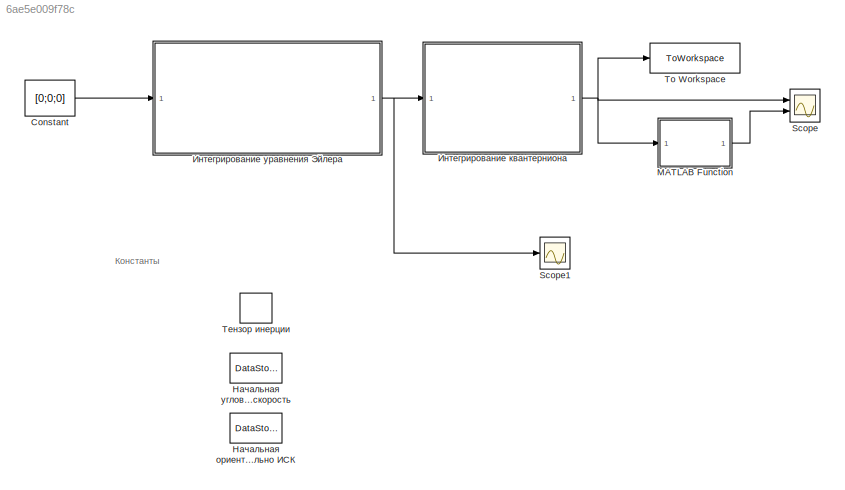
MODEL slx_6ae5e009f78c
KIND model
CONFIG AbsTol = auto
CONFIG EnableMultiTasking = off
CONFIG FixedStep = 1e-3
CONFIG MaxStep = 0.1
CONFIG MinStep = auto
CONFIG RelTol = 1e-3
CONFIG SampleTimeConstraint = Unconstrained
CONFIG SolverName = VariableStepAuto
CONFIG StartTime = 0.0
CONFIG StopTime = 1000.0
BLOCK [Constant] Constant
  Value = [0;0;0]
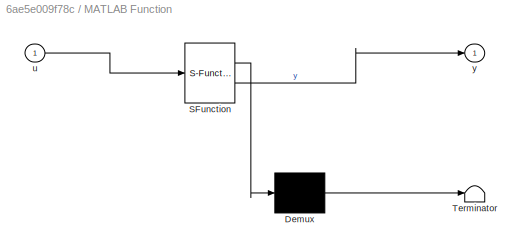
BLOCK [SubSystem] MATLAB Function
  ErrorFcn = Stateflow.Translate.translate
  PermitHierarchicalResolution = ExplicitOnly
  Ports = [1, 1]
  RequestExecContextInheritance = off
  SFBlockType = MATLAB Function
  TreatAsAtomicUnit = on
BLOCK [Demux] MATLAB Function/ Demux 
  Outputs = 1
  Ports = [1, 1]
BLOCK [S-Function] MATLAB Function/ SFunction 
  EnableBusSupport = on
  FunctionName = sf_sfun
  PortCounts = [1 2]
  Ports = [1, 2]
  SFcnIsStateOwnerBlock = off
  SFunctionDeploymentMode = off
  Tag = Stateflow S-Function 3
BLOCK [Terminator] MATLAB Function/ Terminator 
BLOCK [Inport] MATLAB Function/u
BLOCK [Outport] MATLAB Function/y
BLOCK [Scope] Scope
  Floating = off
  NumInputPorts = 2
  Ports = [2]
  ScopeSpecificationString = Simulink.scopes.TimeScopeBlockCfg('CurrentConfiguration', extmgr.ConfigurationSet(extmgr.Configuration('Core','General UI',true),extmgr.Configuration('Core','Source UI',true),extmgr.Configuration('Sources','WiredSimulink',true),extmgr.Configuration('Visuals','Time Domain',true,'SerializedDisplays',{struct('MinYLimReal','-1.13996','MaxYLimReal','1.23777','YLabelReal','','MinYLimMag','0.00000','MaxY...<+2180ch>
BLOCK [Scope] Scope1
  Floating = off
  NumInputPorts = 1
  Ports = [1]
  ScopeSpecificationString = Simulink.scopes.TimeScopeBlockCfg('CurrentConfiguration', extmgr.ConfigurationSet(extmgr.Configuration('Core','General UI',true),extmgr.Configuration('Core','Source UI',true),extmgr.Configuration('Sources','WiredSimulink',true,'DataLoggingVariableName','ScopeData1'),extmgr.Configuration('Visuals','Time Domain',true,'SerializedDisplays',{struct('MinYLimReal','-0.00037','MaxYLimReal','0.00337','YLab...<+1464ch>
BLOCK [ToWorkspace] To Workspace
  FixptAsFi = on
  MaxDataPoints = inf
  Ports = [1]
  SampleTime = -1
  VariableName = quat
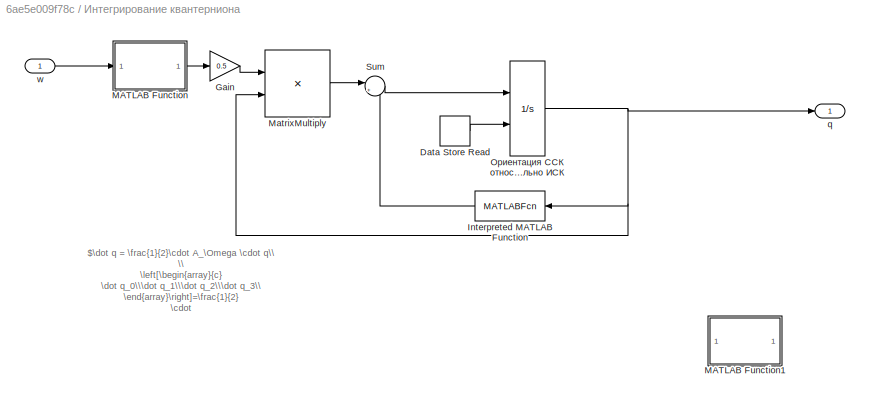
BLOCK [SubSystem] Интегрирование квантерниона
  Ports = [1, 1]
  RequestExecContextInheritance = off
BLOCK [DataStoreRead] Интегрирование квантерниона/Data Store Read
  DataStoreName = SN0
  IndexOptions = Index vector (dialog)
  Indices = 1
  OutputSizes = 1
  Ports = [0, 1]
BLOCK [Gain] Интегрирование квантерниона/Gain
  Gain = 0.5
BLOCK [MATLABFcn] Интегрирование квантерниона/Interpreted MATLAB Function
  MATLABFcn = u.* (sum(u.^2)-1 )
  NameLocation = top
  Output1D = off
  OutputDimensions = [4,1]
  Ports = [1, 1]
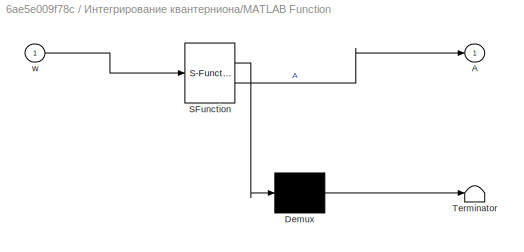
BLOCK [SubSystem] Интегрирование квантерниона/MATLAB Function
  ErrorFcn = Stateflow.Translate.translate
  PermitHierarchicalResolution = ExplicitOnly
  Ports = [1, 1]
  RequestExecContextInheritance = off
  SFBlockType = MATLAB Function
  TreatAsAtomicUnit = on
BLOCK [Demux] Интегрирование квантерниона/MATLAB Function/ Demux 
  Outputs = 1
  Ports = [1, 1]
BLOCK [S-Function] Интегрирование квантерниона/MATLAB Function/ SFunction 
  EnableBusSupport = on
  FunctionName = sf_sfun
  PortCounts = [1 2]
  Ports = [1, 2]
  SFcnIsStateOwnerBlock = off
  SFunctionDeploymentMode = off
  Tag = Stateflow S-Function 2
BLOCK [Terminator] Интегрирование квантерниона/MATLAB Function/ Terminator 
BLOCK [Outport] Интегрирование квантерниона/MATLAB Function/A
BLOCK [Inport] Интегрирование квантерниона/MATLAB Function/w
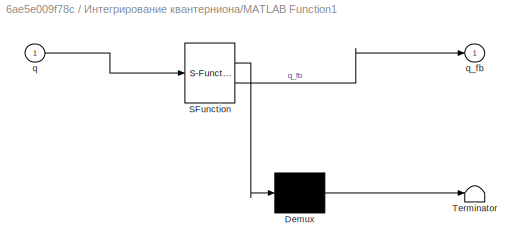
BLOCK [SubSystem] Интегрирование квантерниона/MATLAB Function1
  ErrorFcn = Stateflow.Translate.translate
  NameLocation = top
  PermitHierarchicalResolution = ExplicitOnly
  Ports = [1, 1]
  RequestExecContextInheritance = off
  SFBlockType = MATLAB Function
  TreatAsAtomicUnit = on
BLOCK [Demux] Интегрирование квантерниона/MATLAB Function1/ Demux 
  Outputs = 1
  Ports = [1, 1]
BLOCK [S-Function] Интегрирование квантерниона/MATLAB Function1/ SFunction 
  EnableBusSupport = on
  FunctionName = sf_sfun
  PortCounts = [1 2]
  Ports = [1, 2]
  SFcnIsStateOwnerBlock = off
  SFunctionDeploymentMode = off
  Tag = Stateflow S-Function 1
BLOCK [Terminator] Интегрирование квантерниона/MATLAB Function1/ Terminator 
BLOCK [Inport] Интегрирование квантерниона/MATLAB Function1/q
BLOCK [Outport] Интегрирование квантерниона/MATLAB Function1/q_fb
BLOCK [Product] Интегрирование квантерниона/MatrixMultiply
  Multiplication = Matrix(*)
  Ports = [2, 1]
BLOCK [Sum] Интегрирование квантерниона/Sum
  Inputs = |+-
  Ports = [2, 1]
BLOCK [Outport] Интегрирование квантерниона/q
BLOCK [Inport] Интегрирование квантерниона/w
BLOCK [Integrator] Интегрирование квантерниона/Ориентация ССК относительно ИСК
  InitialConditionSource = external
  Ports = [2, 1]
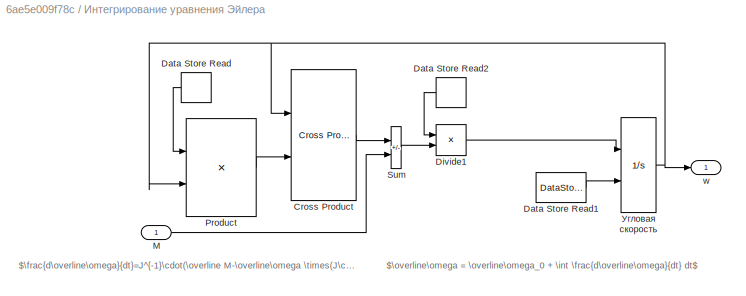
BLOCK [SubSystem] Интегрирование уравнения Эйлера
  Ports = [1, 1]
  RequestExecContextInheritance = off
BLOCK [Reference] Интегрирование уравнения Эйлера/Cross Product  REF=matrix_library/Cross Product
  Ports = [2, 1]
  SourceBlock = matrix_library/Cross Product
  SourceProductBaseCode = SL
  SourceType = CrossProduct
BLOCK [DataStoreRead] Интегрирование уравнения Эйлера/Data Store Read
  DataStoreName = J
  IndexOptions = Index vector (dialog)
  Indices = 1
  NameLocation = top
  OutputSizes = 1
  Ports = [0, 1]
BLOCK [DataStoreRead] Интегрирование уравнения Эйлера/Data Store Read1
  DataStoreName = omega0
  IndexOptions = Index vector (dialog)
  Indices = 1
  OutputSizes = 1
  Ports = [0, 1]
BLOCK [DataStoreRead] Интегрирование уравнения Эйлера/Data Store Read2
  DataStoreName = J
  IndexOptions = Index vector (dialog)
  Indices = 1
  NameLocation = top
  OutputSizes = 1
  Ports = [0, 1]
BLOCK [Product] Интегрирование уравнения Эйлера/Divide1
  Inputs = /*
  Multiplication = Matrix(*)
  Ports = [2, 1]
BLOCK [Inport] Интегрирование уравнения Эйлера/M
BLOCK [Product] Интегрирование уравнения Эйлера/Product
  Inputs = **
  Multiplication = Matrix(*)
  Ports = [2, 1]
BLOCK [Sum] Интегрирование уравнения Эйлера/Sum
  IconShape = rectangular
  Inputs = -+
  Ports = [2, 1]
BLOCK [Outport] Интегрирование уравнения Эйлера/w
BLOCK [Integrator] Интегрирование уравнения Эйлера/Угловая скорость
  InitialConditionSource = external
  Ports = [2, 1]
BLOCK [DataStoreMemory] Начальная ориентация ССК относительно ИСК
  DataStoreName = SN0
  InitialValue = [1;0;0;0]
  ShowAdditionalParam = off
BLOCK [DataStoreMemory] Начальная угловая скорость
  DataStoreName = omega0
  InitialValue = [0;0;0.003]
  ShowAdditionalParam = off
BLOCK [DataStoreMemory] Тензор инерции
  DataStoreName = J
  InitialValue = [2416.66666666667 0 0;0 2237.5 0;0 0 2179.16666666667]
  ShowAdditionalParam = off
ANNOTATION (root): Константы
ANNOTATION Интегрирование квантерниона: $\dot q = \frac{1}{2}\cdot A_\Omega \cdot q\\ \\ \left[\begin{array}{c} \dot q_0\\\dot q_1\\\dot q_2\\\dot q_3\\ \end{array}\right]=\frac{1}{2} \cdot \left[\begin{array}{ccc} 0 &-\omega_x&-\omega_y&-\omega_z\\ \omega_x& 0&\omega_z&-\omega_y\\ \omega_y & -\omega_z & 0 & \omega_x\\ \omega_z & \omega_y & -\omega_z & 0 \end{array}\right] \cdot \left[\begin{array}{c} q_0\\ q_1\\ q_2\\ q_3\\ \end{array}...<+8ch>
ANNOTATION Интегрирование уравнения Эйлера: $\overline\omega = \overline\omega_0 + \int \frac{d\overline\omega}{dt} dt$
ANNOTATION Интегрирование уравнения Эйлера: $\frac{d\overline\omega}{dt}=J^{-1}\cdot(\overline M-\overline\omega \times(J\cdot\overline\omega))$
LINE Constant:1 -> Интегрирование уравнения Эйлера:1
LINE MATLAB Function:1 -> Scope:2
LINE Интегрирование квантерниона/Data Store Read:1 -> Интегрирование квантерниона/Ориентация ССК относительно ИСК:2
LINE Интегрирование квантерниона/Gain:1 -> Интегрирование квантерниона/MatrixMultiply:1
LINE Интегрирование квантерниона/Interpreted MATLAB Function:1 -> Интегрирование квантерниона/Sum:2
LINE Интегрирование квантерниона/MATLAB Function:1 -> Интегрирование квантерниона/Gain:1
LINE Интегрирование квантерниона/MatrixMultiply:1 -> Интегрирование квантерниона/Sum:1
LINE Интегрирование квантерниона/Sum:1 -> Интегрирование квантерниона/Ориентация ССК относительно ИСК:1
LINE Интегрирование квантерниона/w:1 -> Интегрирование квантерниона/MATLAB Function:1
NET Интегрирование квантерниона/Ориентация ССК относительно ИСК:1 -> Интегрирование квантерниона/Interpreted MATLAB Function:1, Интегрирование квантерниона/MatrixMultiply:2, Интегрирование квантерниона/q:1
NET Интегрирование квантерниона:1 -> MATLAB Function:1, Scope:1, To Workspace:1
LINE Интегрирование уравнения Эйлера/Cross Product:1 -> Интегрирование уравнения Эйлера/Sum:1
LINE Интегрирование уравнения Эйлера/Data Store Read1:1 -> Интегрирование уравнения Эйлера/Угловая скорость:2
LINE Интегрирование уравнения Эйлера/Data Store Read2:1 -> Интегрирование уравнения Эйлера/Divide1:1
LINE Интегрирование уравнения Эйлера/Data Store Read:1 -> Интегрирование уравнения Эйлера/Product:1
LINE Интегрирование уравнения Эйлера/Divide1:1 -> Интегрирование уравнения Эйлера/Угловая скорость:1
LINE Интегрирование уравнения Эйлера/M:1 -> Интегрирование уравнения Эйлера/Sum:2
LINE Интегрирование уравнения Эйлера/Product:1 -> Интегрирование уравнения Эйлера/Cross Product:2
LINE Интегрирование уравнения Эйлера/Sum:1 -> Интегрирование уравнения Эйлера/Divide1:2
NET Интегрирование уравнения Эйлера/Угловая скорость:1 -> Интегрирование уравнения Эйлера/Cross Product:1, Интегрирование уравнения Эйлера/Product:2, Интегрирование уравнения Эйлера/w:1
NET Интегрирование уравнения Эйлера:1 -> Scope1:1, Интегрирование квантерниона:1
note: NET lines group one-source signal fan-out (src -> all destinations, sorted); 1:1 wires keep LINE
CHART Интегрирование квантерниона/MATLAB Function states=1 transitions=1
  STATE_LABEL 'eML_blk_kernel()'
  STATE_LABEL 'SCRIPT:\nfunction A = omegaMatrix(w)\n\nA=[\n    0    -w(1) -w(2) -w(3)\n    w(1)  0     w(3) -w(2)\n    w(2) -w(3)  0     w(1)\n    w(3)  w(2) -w(1)  0\n    ];\n\n'
CHART MATLAB Function states=1 transitions=1
  STATE_LABEL 'eML_blk_kernel()'
  STATE_LABEL 'SCRIPT:\nfunction y = fcn(u)\n\ny = sum(u.^2);\n'
CHART Интегрирование квантерниона/MATLAB Function1 states=1 transitions=1
  STATE_LABEL 'eML_blk_kernel()'
  STATE_LABEL 'SCRIPT:\nfunction q_fb = fcn(q)\nq_fb = q.* (sum(q.^2)-1 );'
CHART  states=0 transitions=0
CHART  states=0 transitions=0
CHART  states=0 transitions=0
